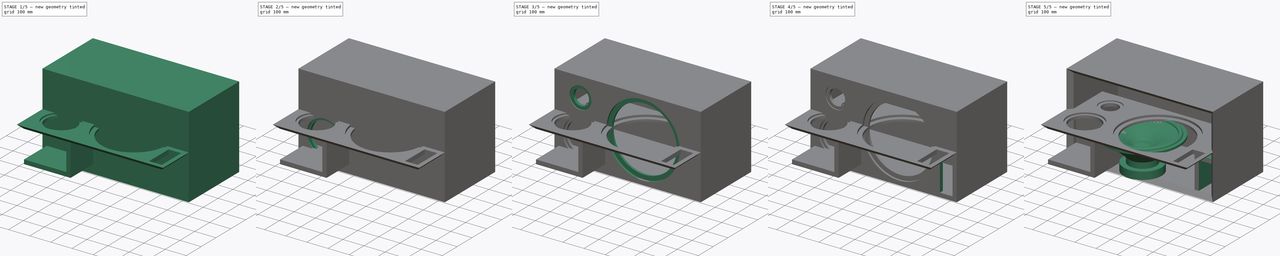
[diagram: build sequence overview — one tinted view per stage of 5, left to right]
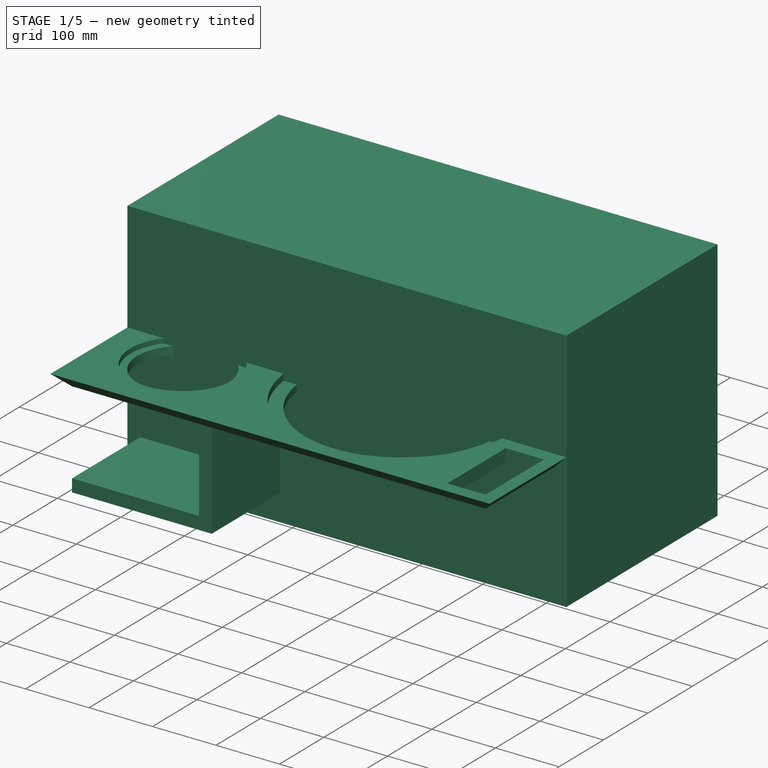
[diagram: stage 1 of 5 — iso view after this stage's code; geometry added in this stage tinted green]
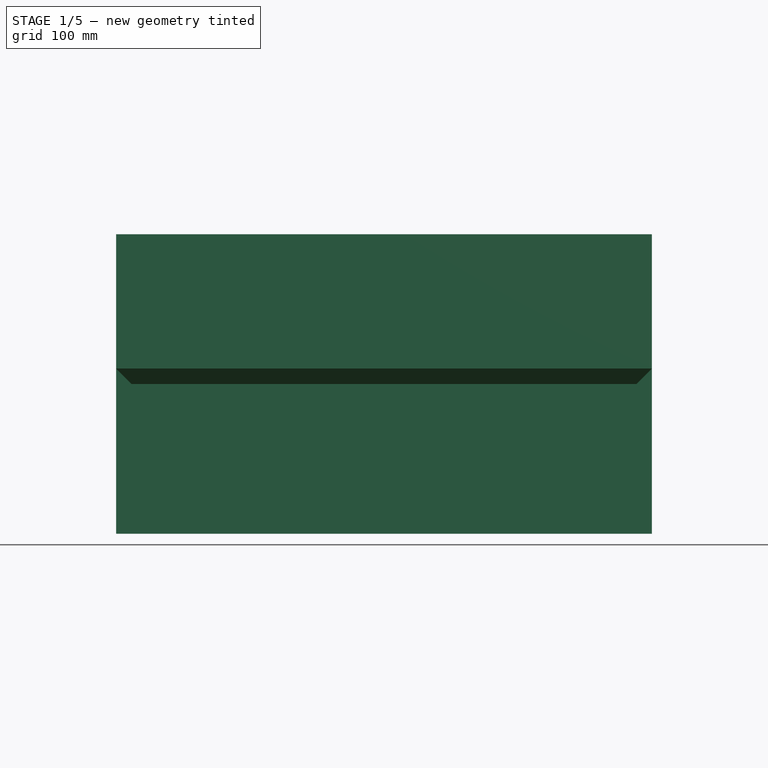
[diagram: stage 1 of 5 — front view after this stage's code; geometry added in this stage tinted green]
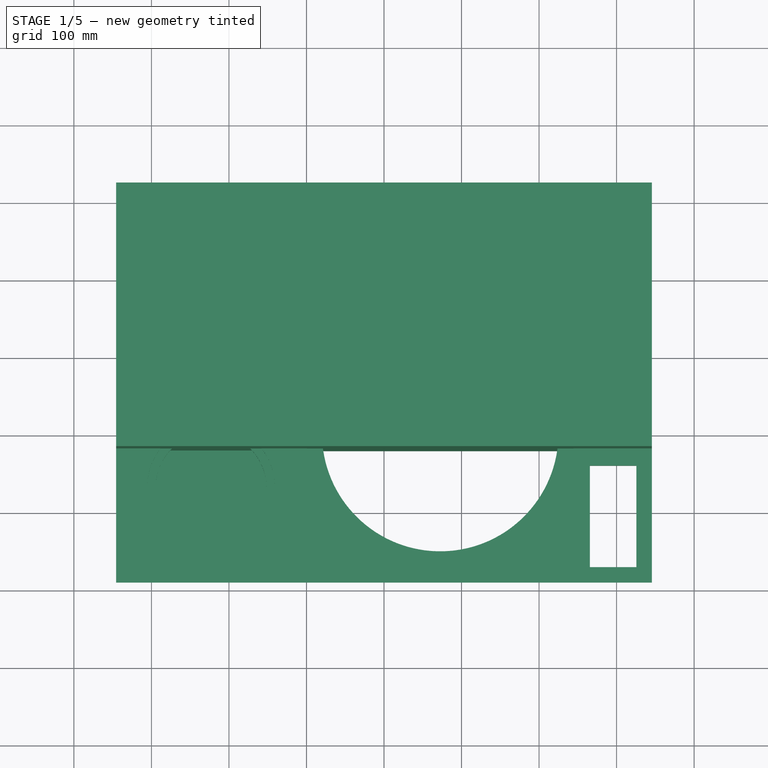
[diagram: stage 1 of 5 — top view after this stage's code; geometry added in this stage tinted green]
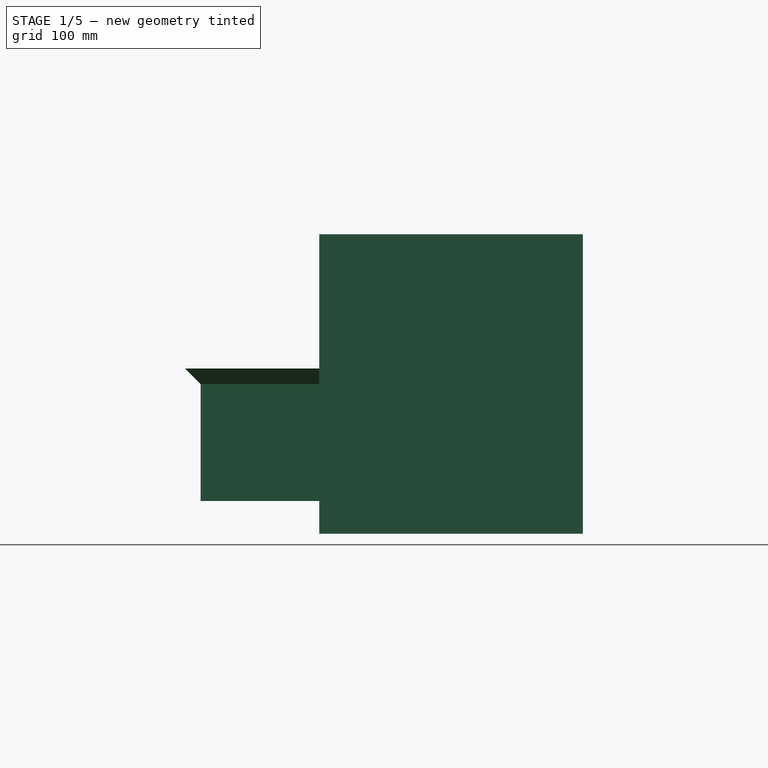
[diagram: stage 1 of 5 — right view after this stage's code; geometry added in this stage tinted green]
FCSTD DOCUMENT  (FreeCAD 1.0R39109 (Git))
Label: front_baffle_cad
License: All rights reserved
LicenseURL: http://en.wikipedia.org/wiki/All_rights_reserved
objects: Sketcher::SketchObject×16, Part::Feature×12, PartDesign::Pocket×10, PartDesign::Pad×5, PartDesign::Body×4, PartDesign::Mirrored×3, App::Part×3, PartDesign::FeatureBase×2, PartDesign::Revolution×1, Part::Box×1, Part::Thickness×1, PartDesign::Boolean×1, PartDesign::Plane×1, PartDesign::ShapeBinder×1
note: 112 computed .brp shape members not serialized (recipe doc carries the construction recipe); baked Part::Feature solids carry a one-line shape summary decoded from their .brp

FEATURE [PartDesign::Body] Body001
  AllowCompound = false
  Group = -> [Sketch010,Revolution]
  Origin = -> Origin004
  Placement = pos=(73,-19,4.2e-15) rot=(1,0,0;1.5708rad)
  Tip = -> Revolution
FEATURE [Part::Box] Box  label="Cube"
  AttacherType = Attacher::AttachEngine3D
  Height = 386.2
  Length = 691.2
  Placement = pos=(-345.6,-20,-193.1) rot=(0,0,1;0rad)
  Width = 340
FEATURE [PartDesign::Mirrored] Mirrored003
  Placement = pos=(0,0,0) rot=(1,0,0;1.5708rad)
  Suppressed = false
  TransformMode = 0
FEATURE [PartDesign::ShapeBinder] CopyMirrored003
  Placement = pos=(0,0,0) rot=(1,0,0;1.5708rad)
  TraceSupport = false
FEATURE [Sketcher::SketchObject] Sketch013
  ArcFitTolerance = 1e-06
  AttachmentSupport = -> [CopyMirrored003]
  FullyConstrained = true
  MakeInternals = false
  MapMode = 5
  Placement = pos=(0,0,0) rot=(-1,0,0;1.5708rad)
FEATURE [PartDesign::Body] Body002
  AllowCompound = false
  BaseFeature = -> Thickness
  Group = -> [BaseFeature,Boolean,DatumPlane,Sketch011,Pad001,Sketch012,Pad002,Pocket009,CopyMirrored003,Sketch013]
  Origin = -> Origin005
  Tip = -> Pocket009
FEATURE [PartDesign::FeatureBase] BaseFeature001
  BaseFeature = -> Mirrored003
  Suppressed = false
FEATURE [Sketcher::SketchObject] Sketch014
  ArcFitTolerance = 1e-06
  AttachmentSupport = -> [BaseFeature001]
  ExternalGeometry = -> [BaseFeature001]
  FullyConstrained = true
  MakeInternals = false
  MapMode = 5
  Placement = pos=(0,0,0) rot=(1,0,0;3.14159rad)
  sketch-geometry (6):
    g0: LineSegment StartX=-325.6 StartY=-36.9 StartZ=0 EndX=-105.6 EndY=-36.9 EndZ=0
    g1: LineSegment StartX=-105.6 StartY=-36.9 StartZ=0 EndX=-105.6 EndY=173.1 EndZ=0
    g2: LineSegment StartX=-105.6 StartY=173.1 StartZ=0 EndX=-125.6 EndY=173.1 EndZ=0
    g3: LineSegment StartX=-125.6 StartY=173.1 StartZ=0 EndX=-125.6 EndY=-16.9 EndZ=0
    g4: LineSegment StartX=-125.6 StartY=-16.9 StartZ=0 EndX=-325.6 EndY=-16.9 EndZ=0
    g5: LineSegment StartX=-325.6 StartY=-16.9 StartZ=0 EndX=-325.6 EndY=-36.9 EndZ=0
  constraints (18):
    c: PointOnObject(g0,g-3)
    c: Horizontal(g0)
    c: Coincident(g0,g1)
    c: PointOnObject(g1,g-4)
    c: Vertical(g1)
    c: Coincident(g1,g2)
    c: PointOnObject(g2,g-4)
    c: Coincident(g2,g3)
    c: Vertical(g3)
    c: Coincident(g3,g4)
    c: PointOnObject(g4,g-3)
    c: Horizontal(g4)
    c: Coincident(g4,g5)
    c: Coincident(g5,g0)
    c: Distance(g0,g4) = 20
    c: Distance(g1,g3) = 20
    c: DistanceX(g4,g4) = 200
    c: DistanceY(g3,g3) = 190
FEATURE [PartDesign::Pad] Pad003
  BaseFeature = -> BaseFeature001
  Direction = (0,0,-1)
  Length = 131
  Length2 = 10
  Profile = -> Sketch014
  ReferenceAxis = -> Sketch014 [N_Axis]
  Refine = true
  Suppressed = false
  Type = 0
FEATURE [Sketcher::SketchObject] Sketch015
  ArcFitTolerance = 1e-06
  AttachmentSupport = -> [Pad003]
  ExternalGeometry = -> [Pad003]
  FullyConstrained = true
  MakeInternals = false
  MapMode = 5
  Placement = pos=(0,0,-131) rot=(1,0,0;3.14159rad)
  sketch-geometry (4):
    g0: LineSegment StartX=-105.6 StartY=-36.9 StartZ=0 EndX=-105.6 EndY=173.1 EndZ=0
    g1: LineSegment StartX=-105.6 StartY=173.1 StartZ=0 EndX=-325.6 EndY=173.1 EndZ=0
    g2: LineSegment StartX=-325.6 StartY=173.1 StartZ=0 EndX=-325.6 EndY=-36.9 EndZ=0
    g3: LineSegment StartX=-325.6 StartY=-36.9 StartZ=0 EndX=-105.6 EndY=-36.9 EndZ=0
  constraints (10):
    c: Coincident(g0,g1)
    c: Coincident(g1,g2)
    c: Coincident(g2,g3)
    c: Coincident(g3,g0)
    c: Vertical(g0)
    c: Vertical(g2)
    c: Horizontal(g1)
    c: Horizontal(g3)
    c: Coincident(g0,g-3)
    c: Coincident(g1,g-4)
FEATURE [PartDesign::Pad] Pad004
  BaseFeature = -> Pad003
  Direction = (0,0,-1)
  Length = 20
  Length2 = 10
  Profile = -> Sketch015
  ReferenceAxis = -> Sketch015 [N_Axis]
  Refine = true
  Suppressed = false
  Type = 0
FEATURE [PartDesign::Body] Body003
  AllowCompound = false
  BaseFeature = -> Mirrored003
  Group = -> [BaseFeature001,Sketch014,Pad003,Sketch015,Pad004]
  Origin = -> Origin006
  Placement = pos=(0,0,0) rot=(1,0,0;1.5708rad)
  Tip = -> Pad004
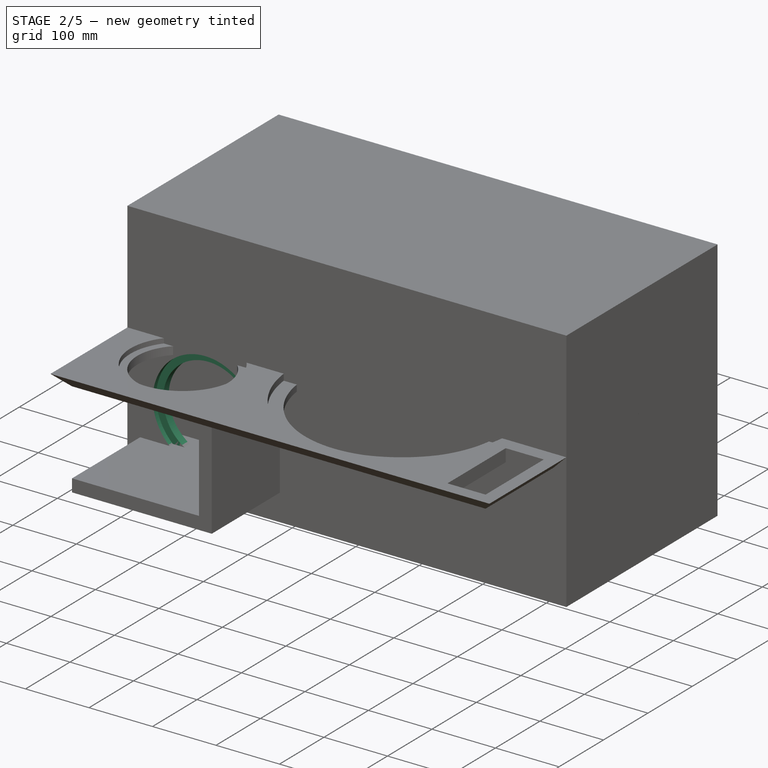
[diagram: stage 2 of 5 — iso view after this stage's code; geometry added in this stage tinted green]
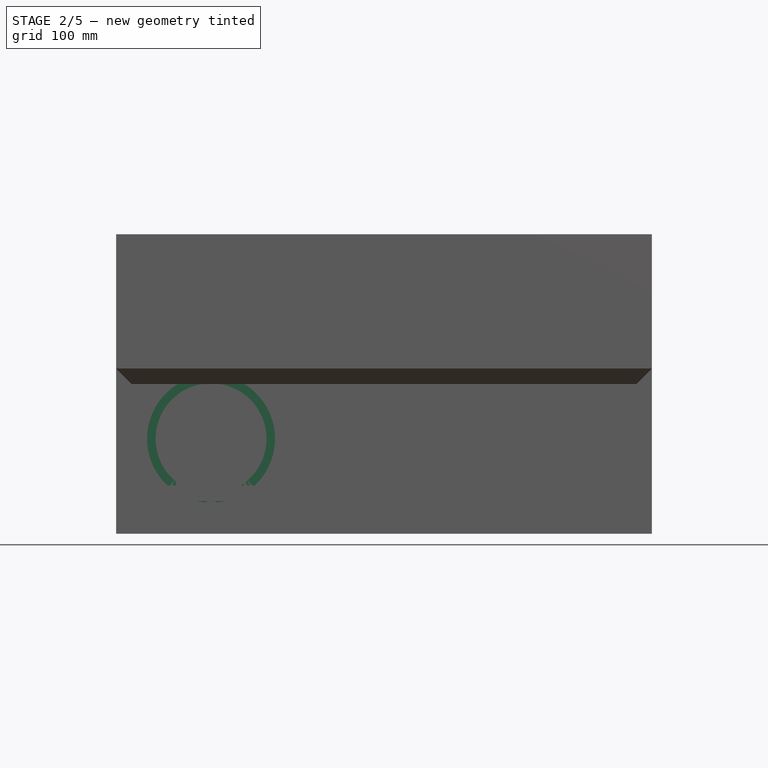
[diagram: stage 2 of 5 — front view after this stage's code; geometry added in this stage tinted green]
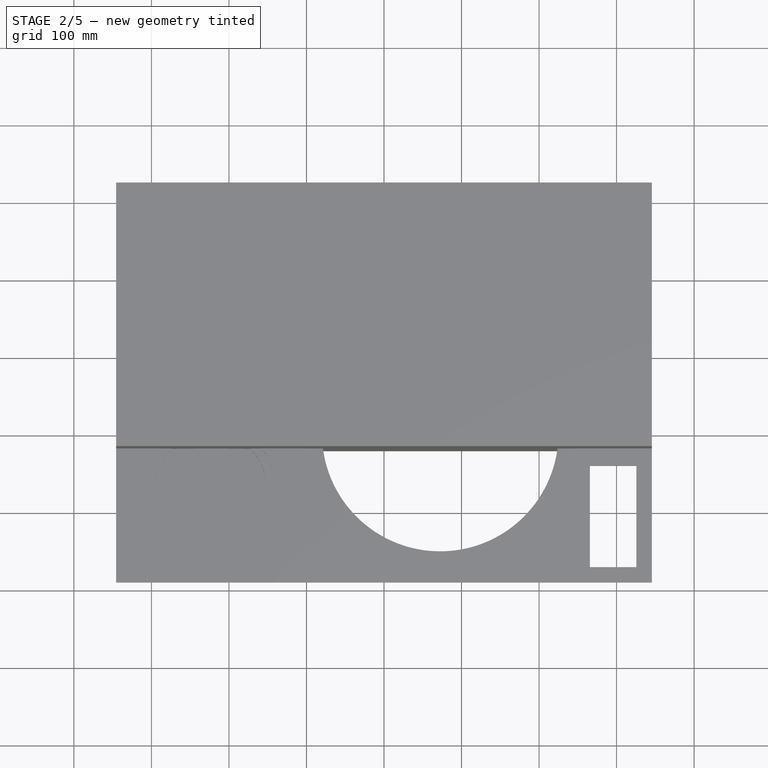
[diagram: stage 2 of 5 — top view after this stage's code; geometry added in this stage tinted green]
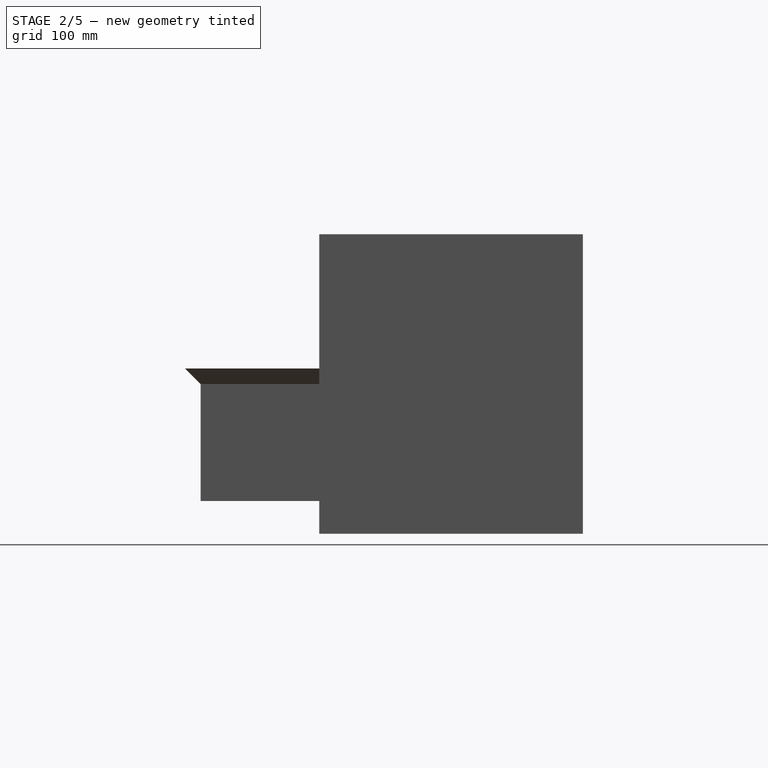
[diagram: stage 2 of 5 — right view after this stage's code; geometry added in this stage tinted green]
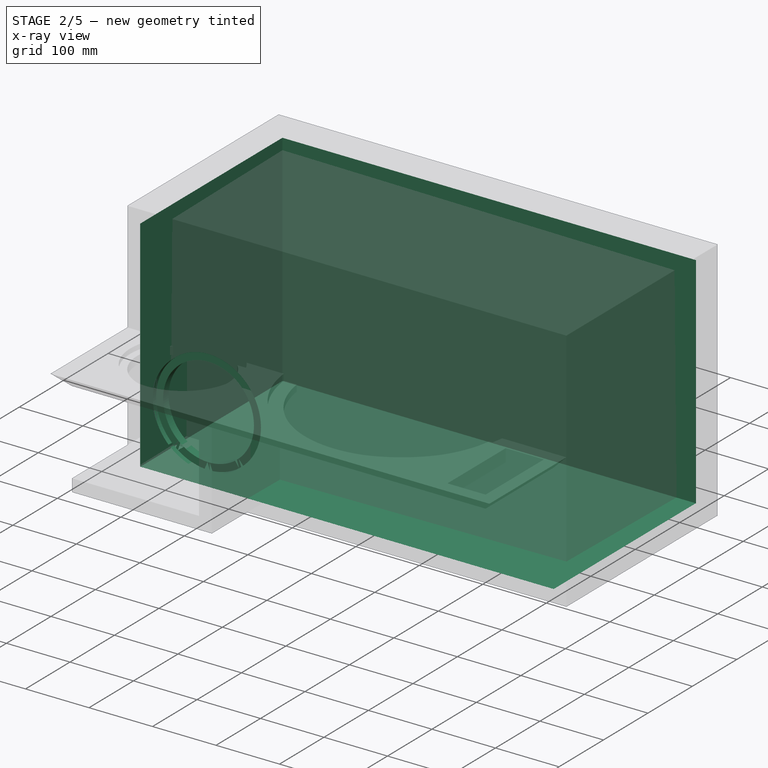
[diagram: stage 2 of 5 — x-ray composite at the iso view; earlier geometry ghosted, this stage's added geometry solid]
FEATURE [Sketcher::SketchObject] Sketch
  ArcFitTolerance = 1e-06
  AttachmentSupport = -> [XZ_Plane]
  FullyConstrained = true
  MakeInternals = false
  MapMode = 5
  Placement = pos=(0,0,0) rot=(1,0,0;1.5708rad)
  sketch-geometry (5):
    g0: LineSegment StartX=345.6 StartY=-193.1 StartZ=0 EndX=345.6 EndY=193.1 EndZ=0
    g1: LineSegment StartX=345.6 StartY=193.1 StartZ=0 EndX=-345.6 EndY=193.1 EndZ=0
    g2: LineSegment StartX=-345.6 StartY=193.1 StartZ=0 EndX=-345.6 EndY=-193.1 EndZ=0
    g3: LineSegment StartX=-345.6 StartY=-193.1 StartZ=0 EndX=345.6 EndY=-193.1 EndZ=0
    g4: GeomPoint [constr] X=0 Y=0 Z=0
  constraints (12):
    c: Coincident(g0,g1)
    c: Coincident(g1,g2)
    c: Coincident(g2,g3)
    c: Coincident(g3,g0)
    c: Vertical(g0)
    c: Vertical(g2)
    c: Horizontal(g1)
    c: Horizontal(g3)
    c: Symmetric(g2,g0,g4)
    c: Coincident(g4,g-1)
    c: DistanceX(g1,g1) = 691.2
    c: Distance(g2,g2) = 386.2
FEATURE [PartDesign::Pad] Pad
  Direction = (0,-1,2e-16)
  Length = 20
  Length2 = 10
  Placement = pos=(0,0,0) rot=(1,0,0;1.5708rad)
  Profile = -> Sketch
  ReferenceAxis = -> Sketch [N_Axis]
  Suppressed = false
  Type = 0
FEATURE [Sketcher::SketchObject] Sketch001
  ArcFitTolerance = 1e-06
  AttachmentSupport = -> [Pad]
  ExternalGeometry = -> [Pad]
  FullyConstrained = false
  MakeInternals = false
  MapMode = 5
  Placement = pos=(0,-20,0) rot=(1,0,0;1.5708rad)
  sketch-geometry (5):
    g0: GeomPoint [constr] X=-223.1 Y=0 Z=0
    g1: Circle CenterX=-223.1 CenterY=-70.6 CenterZ=0 NormalX=0 NormalY=0 NormalZ=1 AngleXU=0 Radius=82.5
    g2: LineSegment [constr] StartX=-223.1 StartY=-70.6 StartZ=0 EndX=-140.6 EndY=-70.6 EndZ=0
    g3: LineSegment [constr] StartX=-223.1 StartY=-70.6 StartZ=0 EndX=-223.1 EndY=-153.1 EndZ=0
    g4: LineSegment [constr] StartX=-223.1 StartY=-70.6 StartZ=0 EndX=-305.6 EndY=-70.6 EndZ=0
  constraints (13):
    c: PointOnObject(g0,g-1)
    c: Diameter(g1) = 165
    c: Coincident(g2,g1)
    c: PointOnObject(g2,g1)
    c: Horizontal(g2)
    c: Coincident(g3,g1)
    c: PointOnObject(g3,g1)
    c: Vertical(g3)
    c: DistanceY(g-3,g3) = 40
    c: Coincident(g4,g1)
    c: PointOnObject(g4,g1)
    c: Horizontal(g4)
    c: DistanceX(g-3,g4) = 40
FEATURE [PartDesign::Pocket] Pocket
  BaseFeature = -> Pad
  Direction = (0,1,-2e-16)
  Length = 7.5
  Length2 = 5
  Placement = pos=(0,0,0) rot=(1,0,0;1.5708rad)
  Profile = -> Sketch001
  ReferenceAxis = -> Sketch001 [N_Axis]
  Suppressed = false
  Type = 0
FEATURE [Sketcher::SketchObject] Sketch002
  ArcFitTolerance = 1e-06
  AttachmentSupport = -> [Pocket]
  ExternalGeometry = -> [Pocket]
  FullyConstrained = true
  MakeInternals = false
  MapMode = 5
  Placement = pos=(0,-12.5,2.8e-15) rot=(1,0,0;1.5708rad)
  sketch-geometry (1):
    g0: Circle CenterX=-223.1 CenterY=-70.6 CenterZ=0 NormalX=0 NormalY=0 NormalZ=1 AngleXU=0 Radius=71.5
  constraints (2):
    c: Coincident(g0,g-3)
    c: Diameter(g0) = 143
FEATURE [PartDesign::Pocket] Pocket001
  BaseFeature = -> Pocket
  Direction = (0,1,-2e-16)
  Length = 5
  Length2 = 5
  Placement = pos=(0,0,0) rot=(1,0,0;1.5708rad)
  Profile = -> Sketch002
  ReferenceAxis = -> Sketch002 [N_Axis]
  Suppressed = false
  Type = 1
FEATURE [Part::Thickness] Thickness
  Faces = -> Box [Face3]
  Intersection = false
  Join = 1
  Mode = 0
  SelfIntersection = false
  Value = -20
FEATURE [PartDesign::FeatureBase] BaseFeature
  BaseFeature = -> Thickness
  Suppressed = false
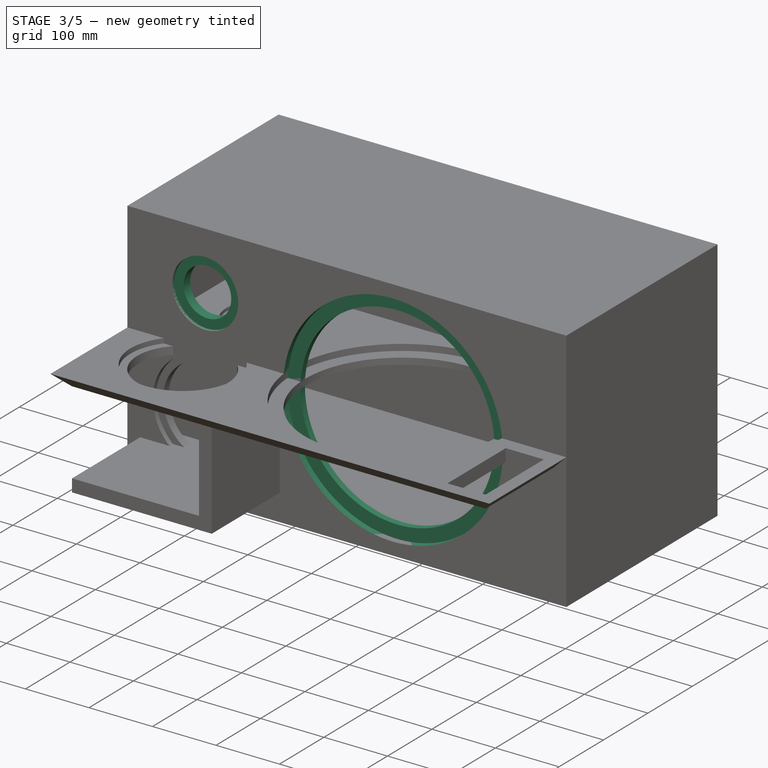
[diagram: stage 3 of 5 — iso view after this stage's code; geometry added in this stage tinted green]
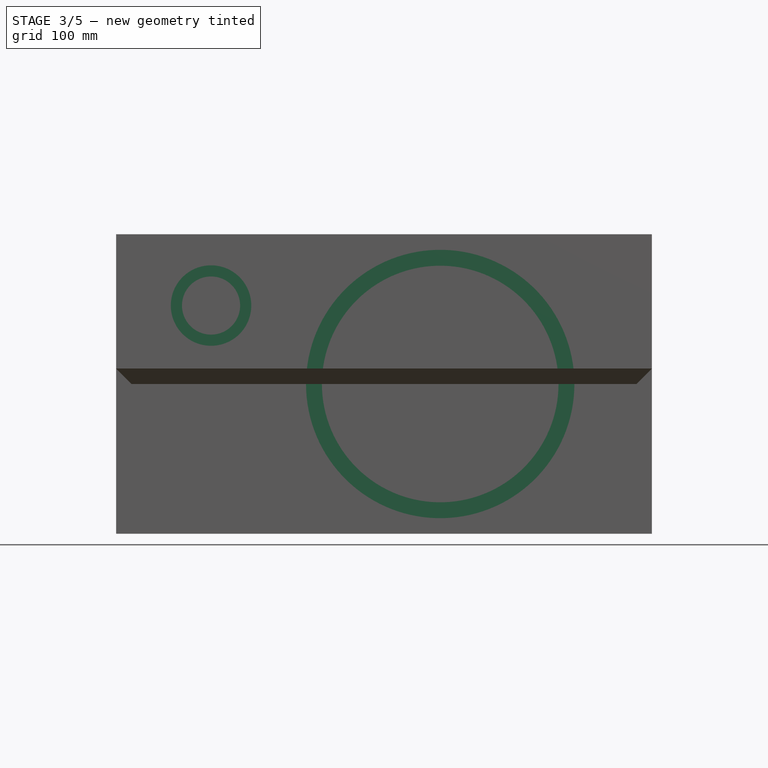
[diagram: stage 3 of 5 — front view after this stage's code; geometry added in this stage tinted green]
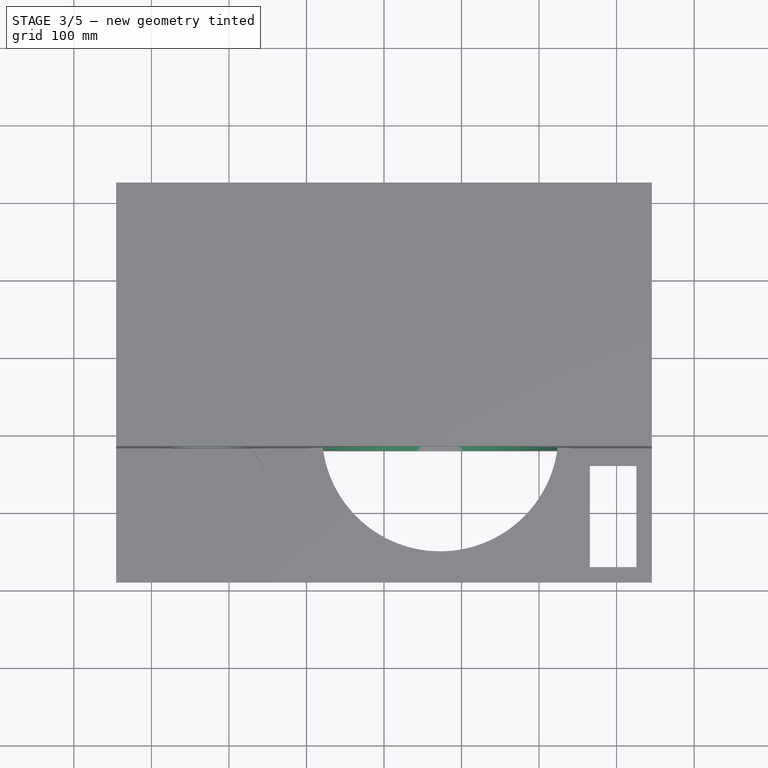
[diagram: stage 3 of 5 — top view after this stage's code; geometry added in this stage tinted green]
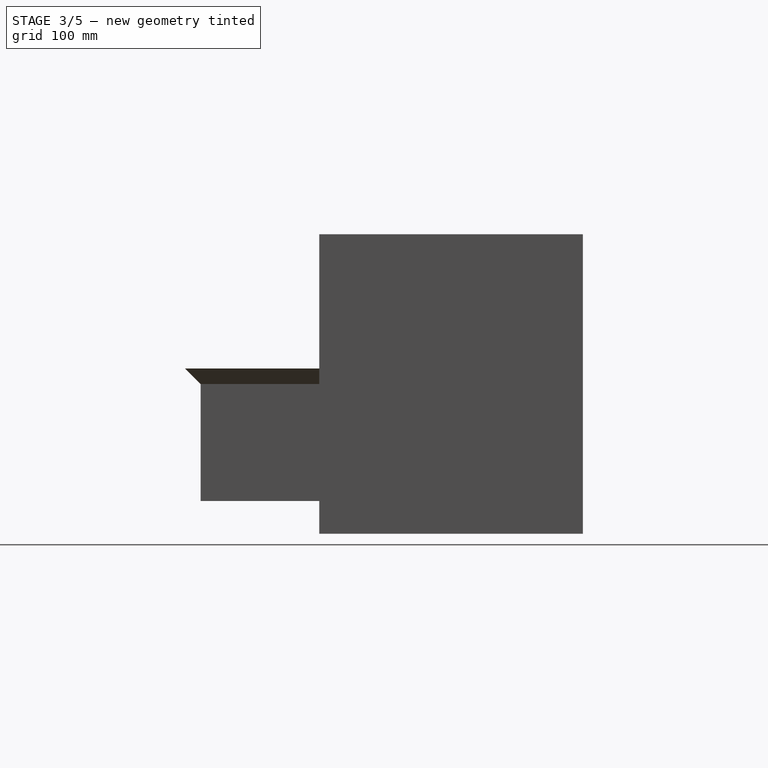
[diagram: stage 3 of 5 — right view after this stage's code; geometry added in this stage tinted green]
FEATURE [Sketcher::SketchObject] Sketch003
  ArcFitTolerance = 1e-06
  AttachmentSupport = -> [Pocket001]
  ExternalGeometry = -> [Pocket001]
  FullyConstrained = true
  MakeInternals = false
  MapMode = 5
  Placement = pos=(0,-20,0) rot=(1,0,0;1.5708rad)
  sketch-geometry (3):
    g0: LineSegment [constr] StartX=-223.1 StartY=-70.6 StartZ=0 EndX=-223.1 EndY=193.1 EndZ=0
    g1: Circle CenterX=-223.1 CenterY=101.2 CenterZ=0 NormalX=0 NormalY=0 NormalZ=1 AngleXU=0 Radius=51.9
    g2: LineSegment [constr] StartX=-223.1 StartY=101.2 StartZ=0 EndX=-223.1 EndY=153.1 EndZ=0
  constraints (9):
    c: Coincident(g0,g-3)
    c: PointOnObject(g0,g-4)
    c: Vertical(g0)
    c: PointOnObject(g1,g0)
    c: Diameter(g1) = 103.8
    c: Coincident(g2,g1)
    c: PointOnObject(g2,g0)
    c: PointOnObject(g2,g1)
    c: DistanceY(g2,g-4) = 40
FEATURE [PartDesign::Pocket] Pocket002
  BaseFeature = -> Pocket001
  Direction = (0,1,-2e-16)
  Length = 5
  Length2 = 5
  Placement = pos=(0,0,0) rot=(1,0,0;1.5708rad)
  Profile = -> Sketch003
  ReferenceAxis = -> Sketch003 [N_Axis]
  Suppressed = false
  Type = 0
FEATURE [Sketcher::SketchObject] Sketch004
  ArcFitTolerance = 1e-06
  AttachmentSupport = -> [Pocket002]
  ExternalGeometry = -> [Pocket002]
  FullyConstrained = true
  MakeInternals = false
  MapMode = 5
  Placement = pos=(0,-15,0) rot=(1,0,0;1.5708rad)
  sketch-geometry (1):
    g0: Circle CenterX=-223.1 CenterY=101.2 CenterZ=0 NormalX=0 NormalY=0 NormalZ=1 AngleXU=0 Radius=37.5
  constraints (2):
    c: Coincident(g0,g-3)
    c: Diameter(g0) = 75
FEATURE [PartDesign::Pocket] Pocket003
  BaseFeature = -> Pocket002
  Direction = (0,1,-2e-16)
  Length = 5
  Length2 = 5
  Placement = pos=(0,0,0) rot=(1,0,0;1.5708rad)
  Profile = -> Sketch004
  ReferenceAxis = -> Sketch004 [N_Axis]
  Suppressed = false
  Type = 1
FEATURE [Sketcher::SketchObject] Sketch005
  ArcFitTolerance = 1e-06
  AttachmentSupport = -> [Pocket003]
  ExternalGeometry = -> [Pocket003]
  FullyConstrained = true
  MakeInternals = false
  MapMode = 5
  Placement = pos=(0,-20,0) rot=(1,0,0;1.5708rad)
  sketch-geometry (3):
    g0: Circle CenterX=72.5 CenterY=0 CenterZ=0 NormalX=0 NormalY=0 NormalZ=1 AngleXU=0 Radius=173.1
    g1: LineSegment [constr] StartX=72.5 StartY=0 StartZ=0 EndX=-100.6 EndY=0 EndZ=0
    g2: LineSegment [constr] StartX=-223.1 StartY=-70.6 StartZ=0 EndX=-140.6 EndY=-70.6 EndZ=0
  constraints (9):
    c: PointOnObject(g0,g-1)
    c: Diameter(g0) = 346.2
    c: Coincident(g1,g0)
    c: PointOnObject(g1,g0)
    c: Horizontal(g1)
    c: Coincident(g2,g-3)
    c: PointOnObject(g2,g-3)
    c: Horizontal(g2)
    c: DistanceX(g2,g1) = 40
FEATURE [PartDesign::Pocket] Pocket004
  BaseFeature = -> Pocket003
  Direction = (0,1,-2e-16)
  Length = 10
  Length2 = 5
  Placement = pos=(0,0,0) rot=(1,0,0;1.5708rad)
  Profile = -> Sketch005
  ReferenceAxis = -> Sketch005 [N_Axis]
  Suppressed = false
  Type = 0
FEATURE [Sketcher::SketchObject] Sketch006
  ArcFitTolerance = 1e-06
  AttachmentSupport = -> [Pocket004]
  ExternalGeometry = -> [Pocket004]
  FullyConstrained = true
  MakeInternals = false
  MapMode = 5
  Placement = pos=(0,-10,0) rot=(1,0,0;1.5708rad)
  sketch-geometry (1):
    g0: Circle CenterX=72.5 CenterY=0 CenterZ=0 NormalX=0 NormalY=0 NormalZ=1 AngleXU=0 Radius=152.6
  constraints (2):
    c: Coincident(g0,g-3)
    c: Diameter(g0) = 305.2
FEATURE [PartDesign::Pocket] Pocket005
  BaseFeature = -> Pocket004
  Direction = (0,1,-2e-16)
  Length = 5
  Length2 = 5
  Placement = pos=(0,0,0) rot=(1,0,0;1.5708rad)
  Profile = -> Sketch006
  ReferenceAxis = -> Sketch006 [N_Axis]
  Suppressed = false
  Type = 1
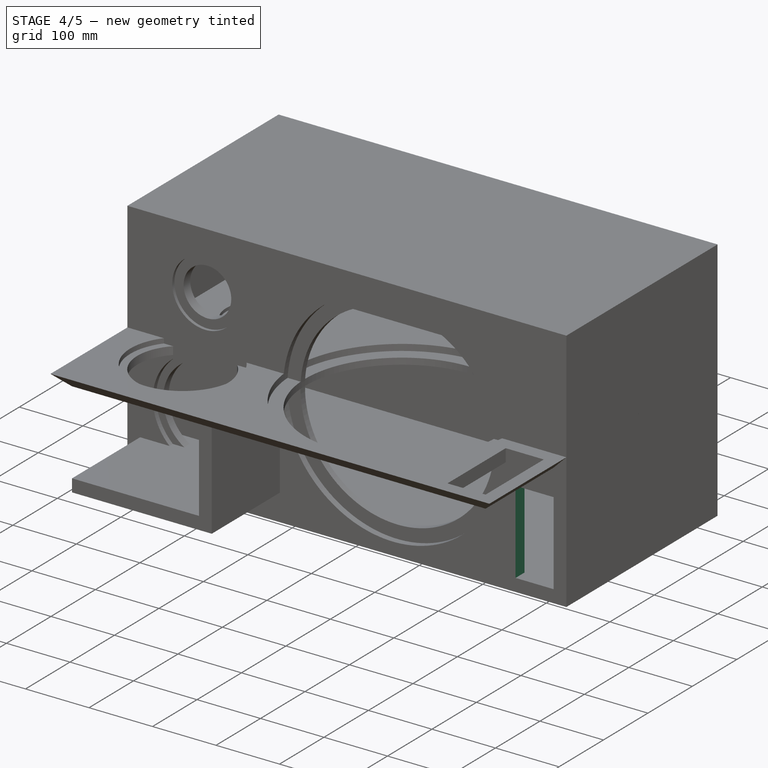
[diagram: stage 4 of 5 — iso view after this stage's code; geometry added in this stage tinted green]
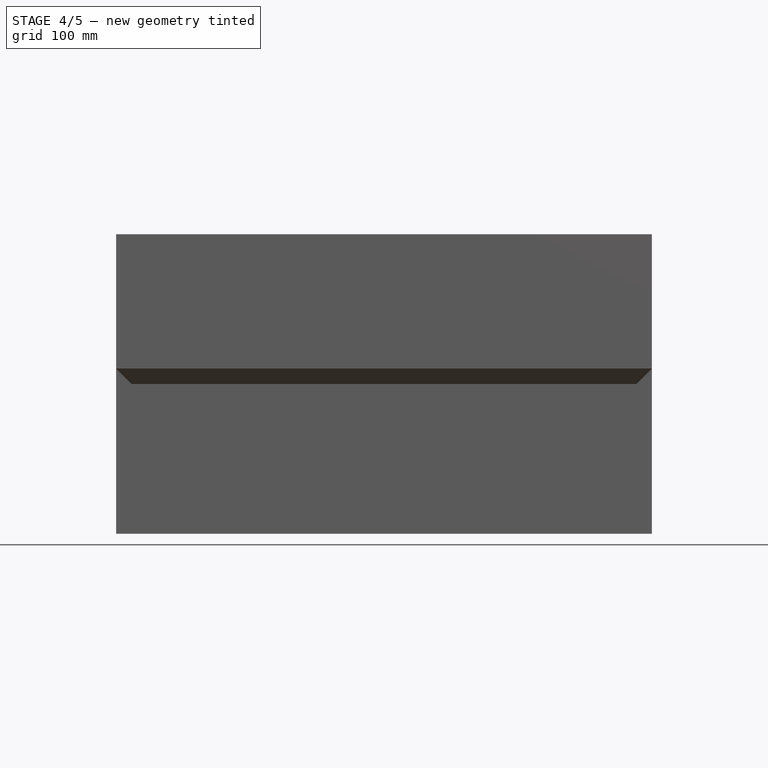
[diagram: stage 4 of 5 — front view after this stage's code; geometry added in this stage tinted green]
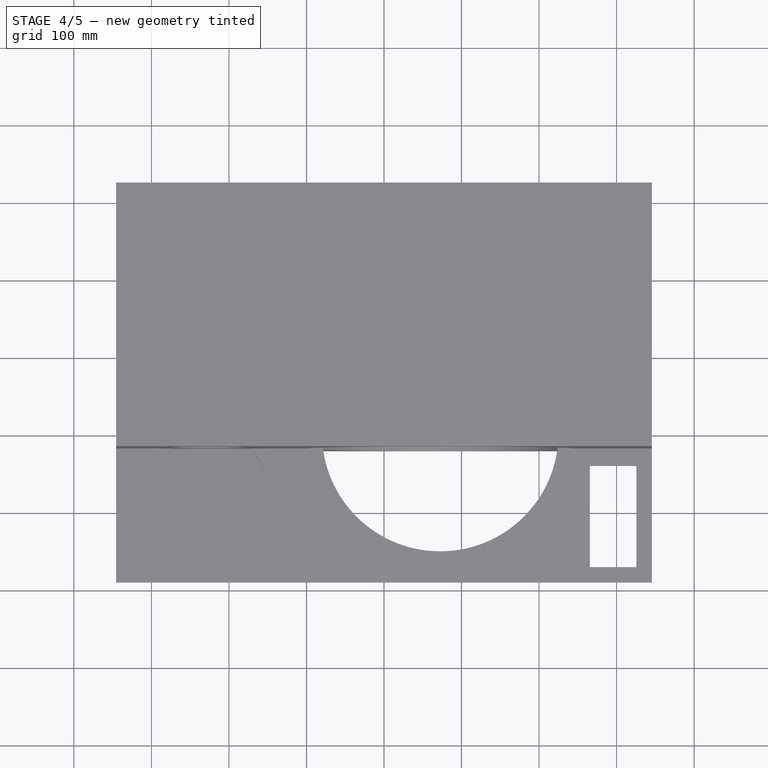
[diagram: stage 4 of 5 — top view after this stage's code; geometry added in this stage tinted green]
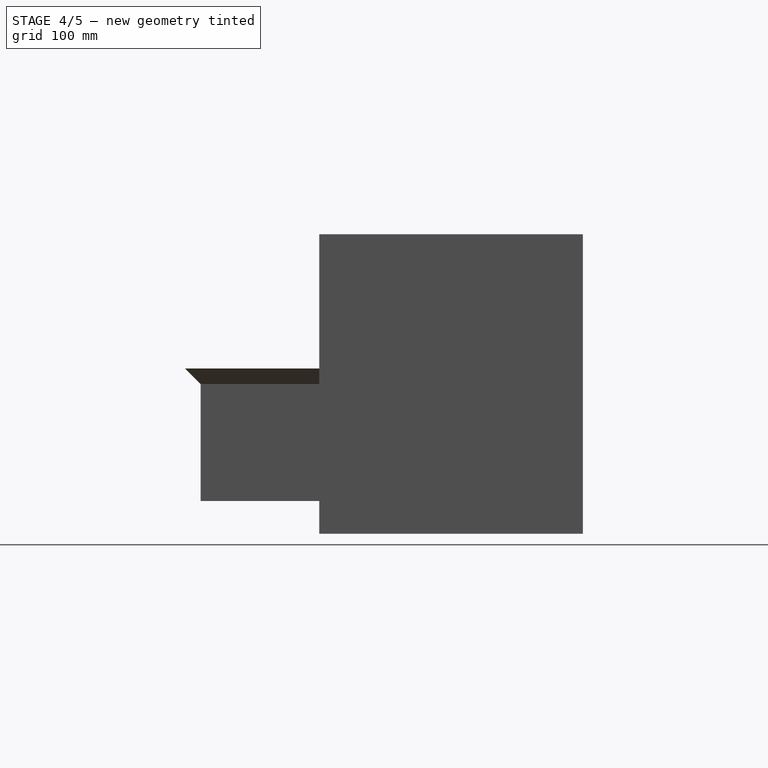
[diagram: stage 4 of 5 — right view after this stage's code; geometry added in this stage tinted green]
FEATURE [Sketcher::SketchObject] Sketch007
  ArcFitTolerance = 1e-06
  AttachmentSupport = -> [Pocket005]
  ExternalGeometry = -> [Pocket005]
  FullyConstrained = true
  MakeInternals = false
  MapMode = 5
  Placement = pos=(0,-20,0) rot=(1,0,0;1.5708rad)
  sketch-geometry (5):
    g0: LineSegment StartX=265.6 StartY=-173.1 StartZ=0 EndX=325.6 EndY=-173.1 EndZ=0
    g1: LineSegment StartX=325.6 StartY=-173.1 StartZ=0 EndX=325.6 EndY=-42.1 EndZ=0
    g2: LineSegment StartX=325.6 StartY=-42.1 StartZ=0 EndX=265.6 EndY=-42.1 EndZ=0
    g3: LineSegment StartX=265.6 StartY=-42.1 StartZ=0 EndX=265.6 EndY=-173.1 EndZ=0
    g4: GeomPoint [constr] X=295.6 Y=-107.6 Z=0
  constraints (13):
    c: Coincident(g0,g1)
    c: Coincident(g1,g2)
    c: Coincident(g2,g3)
    c: Coincident(g3,g0)
    c: Horizontal(g0)
    c: Horizontal(g2)
    c: Vertical(g1)
    c: Vertical(g3)
    c: Symmetric(g2,g0,g4)
    c: DistanceX(g2,g2) = 60
    c: DistanceY(g3,g3) = 131
    c: DistanceX(g0,g-4) = 20
    c: DistanceY(g-4,g0) = 20
FEATURE [PartDesign::Pocket] Pocket006
  BaseFeature = -> Pocket005
  Direction = (0,1,-2e-16)
  Length = 5
  Length2 = 5
  Placement = pos=(0,0,0) rot=(1,0,0;1.5708rad)
  Profile = -> Sketch007
  ReferenceAxis = -> Sketch007 [N_Axis]
  Suppressed = false
  Type = 1
FEATURE [Sketcher::SketchObject] Sketch008
  ArcFitTolerance = 1e-06
  AttachmentSupport = -> [Pocket006]
  ExternalGeometry = -> [Pocket006]
  FullyConstrained = true
  MakeInternals = false
  MapMode = 5
  Placement = pos=(0,8.5e-14,193.1) rot=(0,0,1;3.14159rad)
  sketch-geometry (3):
    g0: LineSegment StartX=-345.6 StartY=20 StartZ=0 EndX=-325.6 EndY=0 EndZ=0
    g1: LineSegment StartX=-345.6 StartY=0 StartZ=0 EndX=-345.6 EndY=20 EndZ=0
    g2: LineSegment StartX=-345.6 StartY=0 StartZ=0 EndX=-325.6 EndY=0 EndZ=0
  constraints (8):
    c: Coincident(g0,g-3)
    c: PointOnObject(g0,g-4)
    c: PointOnObject(g1,g-1)
    c: Vertical(g1)
    c: Coincident(g2,g1)
    c: Coincident(g2,g0)
    c: Coincident(g0,g1)
    c: Angle(g0,g2) = 0.785398
FEATURE [PartDesign::Pocket] Pocket007
  BaseFeature = -> Pocket006
  Direction = (0,0,-1)
  Length = 5
  Length2 = 5
  Placement = pos=(0,0,0) rot=(1,0,0;1.5708rad)
  Profile = -> Sketch008
  ReferenceAxis = -> Sketch008 [N_Axis]
  Suppressed = false
  Type = 1
FEATURE [PartDesign::Mirrored] Mirrored
  BaseFeature = -> Pocket007
  MirrorPlane = -> YZ_Plane
  Originals = -> [Pocket007]
  Placement = pos=(0,0,0) rot=(1,0,0;1.5708rad)
  Suppressed = false
  TransformMode = 0
FEATURE [Sketcher::SketchObject] Sketch009
  ArcFitTolerance = 1e-06
  AttachmentSupport = -> [YZ_Plane]
  ExternalGeometry = -> [Mirrored]
  FullyConstrained = true
  MakeInternals = false
  MapMode = 5
  Placement = pos=(0,0,0) rot=(0.57735,0.57735,0.57735;2.0944rad)
  sketch-geometry (3):
    g0: LineSegment StartX=-20 StartY=193.1 StartZ=0 EndX=4.26e-14 EndY=173.1 EndZ=0
    g1: LineSegment StartX=4.26e-14 StartY=173.1 StartZ=0 EndX=4.29e-14 EndY=193.1 EndZ=0
    g2: LineSegment StartX=4.29e-14 StartY=193.1 StartZ=0 EndX=-20 EndY=193.1 EndZ=0
  constraints (7):
    c: Coincident(g-4,g0)
    c: PointOnObject(g0,g-5)
    c: Coincident(g0,g1)
    c: Coincident(g1,g-5)
    c: Coincident(g1,g2)
    c: Coincident(g2,g0)
    c: Angle(g1,g0) = 0.785398
FEATURE [PartDesign::Pocket] Pocket008
  BaseFeature = -> Mirrored
  Direction = (-1,0,0)
  Length = 5
  Length2 = 5
  Midplane = true
  Placement = pos=(0,0,0) rot=(1,0,0;1.5708rad)
  Profile = -> Sketch009
  ReferenceAxis = -> Sketch009 [N_Axis]
  Suppressed = false
  Type = 1
FEATURE [PartDesign::Mirrored] Mirrored001
  BaseFeature = -> Pocket008
  MirrorPlane = -> XY_Plane
  Originals = -> [Pocket008]
  Placement = pos=(0,0,0) rot=(1,0,0;1.5708rad)
  Suppressed = false
  TransformMode = 0
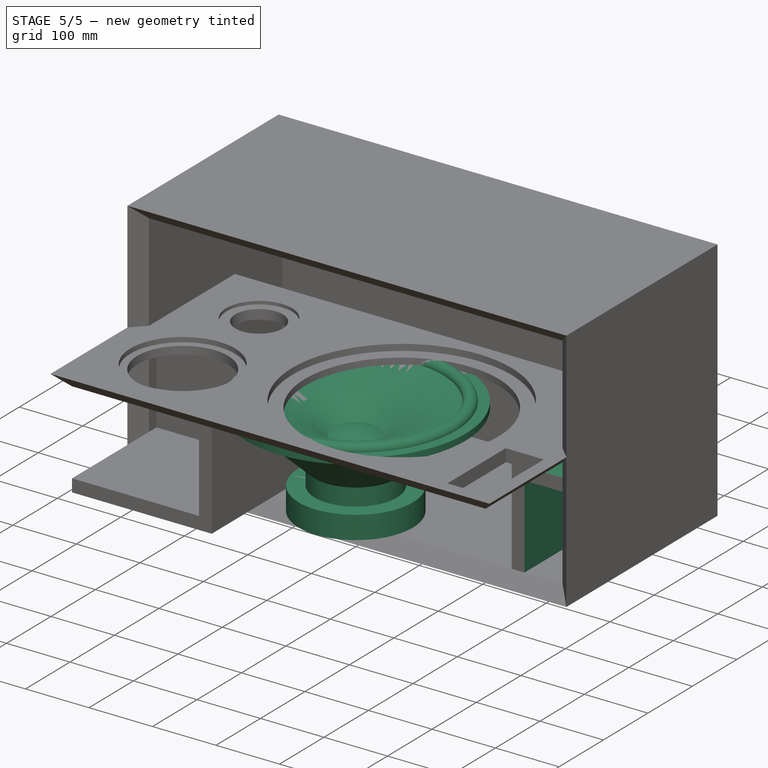
[diagram: stage 5 of 5 — iso view after this stage's code; geometry added in this stage tinted green]
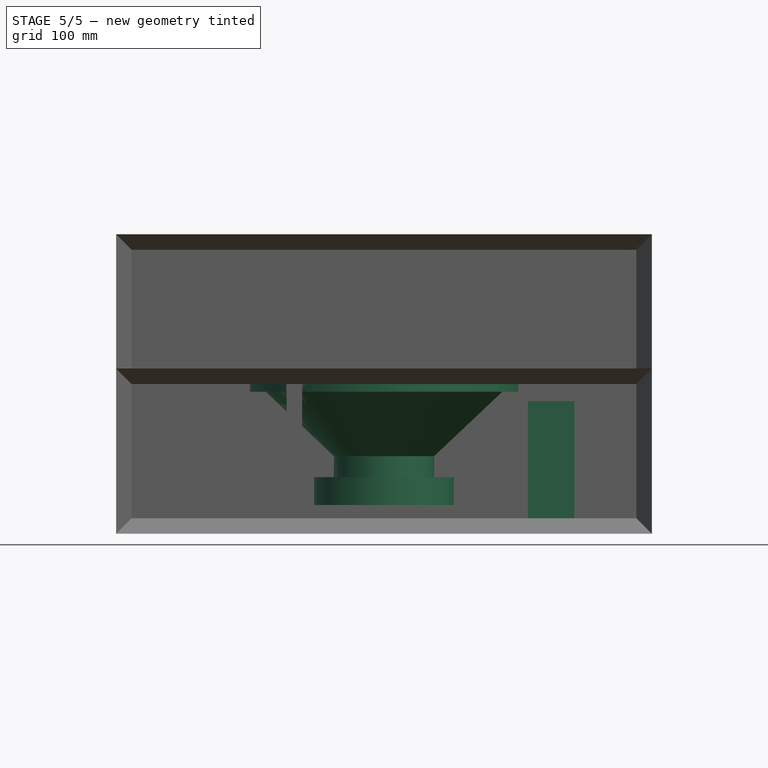
[diagram: stage 5 of 5 — front view after this stage's code; geometry added in this stage tinted green]
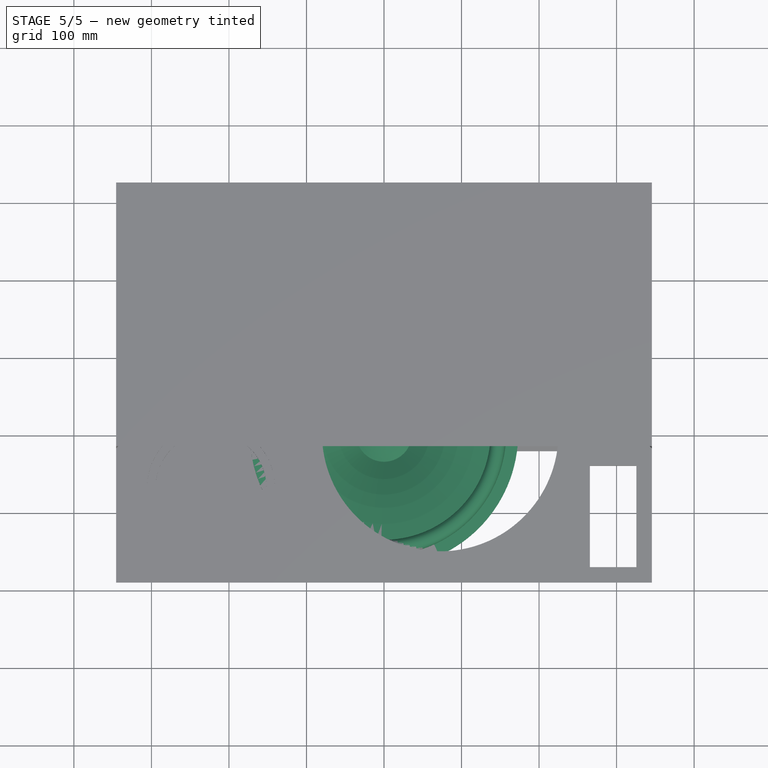
[diagram: stage 5 of 5 — top view after this stage's code; geometry added in this stage tinted green]
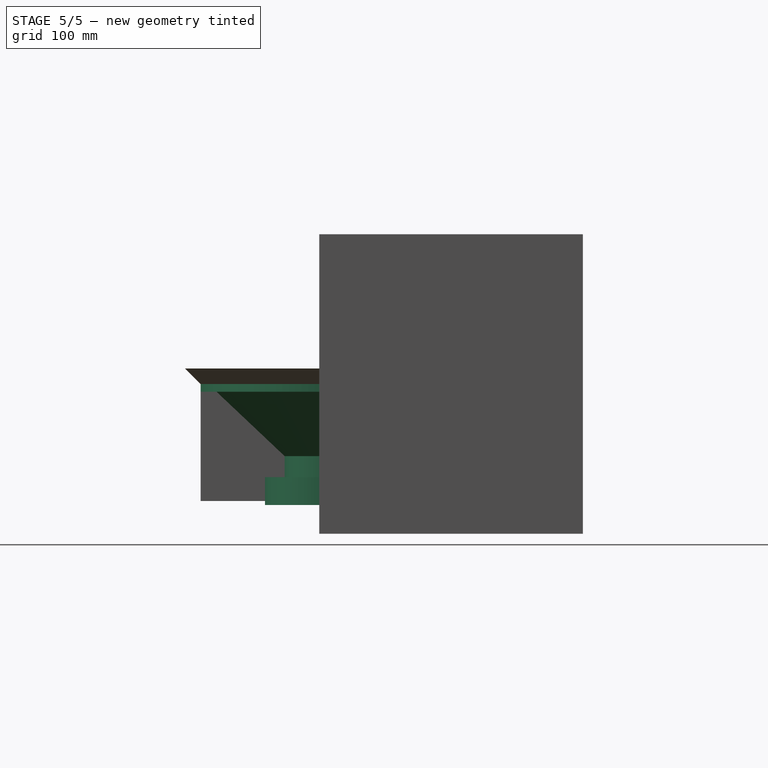
[diagram: stage 5 of 5 — right view after this stage's code; geometry added in this stage tinted green]
FEATURE [PartDesign::Body] Body
  AllowCompound = false
  Group = -> [Sketch,Pad,Sketch001,Pocket,Sketch002,Pocket001,Sketch003,Pocket002,Sketch004,Pocket003,Sketch005,Pocket004,Sketch006,Pocket005,Sketch007,Pocket006,Sketch008,Pocket007,Mirrored,Sketch009,Pocket008,Mirrored001]
  Origin = -> Origin
  Tip = -> Mirrored001
FEATURE [Part::Feature] Part__Feature  label="1"
  Placement = pos=(-223,-16,101) rot=(1,0,0;1.5708rad)
  shape: bbox 112.5 x 39.72 x 112.5 mm, 287 faces (baked)
FEATURE [Part::Feature] Part__Feature001  label="COMPOUND"
  shape: bbox 96.29 x 166 x 165 mm, 220 faces (baked)
FEATURE [Part::Feature] Part__Feature002  label="COMPOUND001"
  shape: bbox 22.35 x 44.2 x 44.59 mm, 6 faces (baked)
FEATURE [Part::Feature] Part__Feature003  label="COMPOUND002"
  shape: bbox 22.35 x 67.97 x 41.44 mm, 6 faces (baked)
FEATURE [Part::Feature] Part__Feature004  label="COMPOUND003"
  shape: bbox 22.35 x 44.2 x 73.61 mm, 6 faces (baked)
FEATURE [Part::Feature] Part__Feature005  label="COMPOUND004"
  shape: bbox 22.35 x 44.2 x 73.61 mm, 8 faces (baked)
FEATURE [Part::Feature] Part__Feature006  label="COMPOUND005"
  shape: bbox 22.35 x 67.97 x 41.44 mm, 6 faces (baked)
FEATURE [Part::Feature] Part__Feature007  label="COMPOUND006"
  shape: bbox 22.35 x 44.2 x 44.59 mm, 6 faces (baked)
FEATURE [Part::Feature] Part__Feature008  label="COMPOUND007"
  shape: bbox 2.716 x 93.81 x 93.81 mm, 94 faces (baked)
FEATURE [Part::Feature] Part__Feature009  label="COMPOUND008"
  shape: bbox 6.018 x 164 x 164 mm, 6 faces (baked)
FEATURE [App::Part] COMPOUND  label="COMPOUND009"
  Group = -> [Part__Feature001,Part__Feature002,Part__Feature003,Part__Feature004,Part__Feature005,Part__Feature006,Part__Feature007,Part__Feature008,Part__Feature009]
  Origin = -> Origin001
FEATURE [Part::Feature] Part__Feature010  label="COMPOUND010"
  shape: bbox 50.96 x 135.6 x 135.6 mm, 32 faces, 0 solids (baked)
FEATURE [Part::Feature] Part__Feature011  label="COMPOUND011"
  shape: bbox 2.959 x 40 x 40 mm, 2 faces, 0 solids (baked)
FEATURE [App::Part] COMPOUND001  label="COMPOUND012"
  Group = -> [Part__Feature010,Part__Feature011]
  Origin = -> Origin002
FEATURE [App::Part] Document
  Group = -> [COMPOUND,COMPOUND001]
  Origin = -> Origin003
  Placement = pos=(-223,-26,-71) rot=(0,0,1;1.5708rad)
FEATURE [Sketcher::SketchObject] Sketch010
  ArcFitTolerance = 1e-06
  AttachmentSupport = -> [XZ_Plane004]
  FullyConstrained = false
  MakeInternals = false
  MapMode = 5
  Placement = pos=(0,0,0) rot=(1,0,0;1.5708rad)
  sketch-geometry (20):
    g0: LineSegment StartX=0 StartY=-156 StartZ=0 EndX=5.1e-15 EndY=-38.7986 EndZ=0
    g1: ArcOfCircle CenterX=0 CenterY=-121.91 CenterZ=0 NormalX=0 NormalY=0 NormalZ=1 AngleXU=0 Radius=83.1112 StartAngle=1.12281 EndAngle=1.5708
    g2-g6: Circle [constr] x5 (B-spline internal-alignment scaffolding for g7; pole/knot coordinates omitted)
    g7: BSplineCurve PolesCount=5 KnotsCount=3 Degree=3 IsPeriodic=0
    g8: GeomPoint [constr] X=36 Y=-47 Z=0
    g9: GeomPoint [constr] X=75.381 Y=-21.553 Z=0
    g10: GeomPoint [constr] X=137.5 Y=0 Z=0
    g11: ArcOfCircle CenterX=147.5 CenterY=0 CenterZ=0 NormalX=0 NormalY=0 NormalZ=1 AngleXU=0 Radius=10 StartAngle=0 EndAngle=3.14159
    g12: LineSegment StartX=157.5 StartY=0 StartZ=0 EndX=173.1 EndY=0 EndZ=0
    g13: LineSegment StartX=173.1 StartY=0 StartZ=0 EndX=173.1 EndY=-10 EndZ=0
    g14: LineSegment StartX=173.1 StartY=-10 StartZ=0 EndX=152.6 EndY=-10 EndZ=0
    g15: LineSegment StartX=152.6 StartY=-10 StartZ=0 EndX=64.7225 EndY=-93.0181 EndZ=0
    g16: LineSegment StartX=90 StartY=-156 StartZ=0 EndX=0 EndY=-156 EndZ=0
    g17: LineSegment StartX=90 StartY=-156 StartZ=0 EndX=90 EndY=-120.116 EndZ=0
    g18: LineSegment StartX=90 StartY=-120.116 StartZ=0 EndX=64.7225 EndY=-120.116 EndZ=0
    g19: LineSegment StartX=64.7225 StartY=-120.116 StartZ=0 EndX=64.7225 EndY=-93.0181 EndZ=0
  constraints (40):
    c: PointOnObject(g0,g-2)
    c: PointOnObject(g0,g-2)
    c: Coincident(g1,g0)
    c: Weight(g2) = 1
    c: Equal(g2, g3-g6) x4
    c: InternalAlignment(g2-g6 -> g7) x5
    c: InternalAlignment(g8,g7)
    c: InternalAlignment(g9,g7)
    c: InternalAlignment(g10,g7)
    c: Coincident(g2,g1)
    c: Coincident(g11,g7)
    c: Coincident(g11,g12)
    c: Coincident(g12,g13)
    c: Vertical(g13)
    c: Coincident(g13,g14)
    c: Horizontal(g14)
    c: Coincident(g14,g15)
    c: Coincident(g16,g0)
    c: Horizontal(g16)
    c: Horizontal(g12)
    c: DistanceX(g-1,g12) = 173.1
    c: DistanceY(g13,g13) = 10
    c: Radius(g11) = 10
    c: PointOnObject(g12,g-1)
    c: DistanceX(g-1,g14) = 152.6
    c: PointOnObject(g11,g-1)
    c: PointOnObject(g7,g-1)
    c: DistanceY(g16,g14) = 146
    c: DistanceX(g-1,g11) = 147.5
    c: DistanceX(g16,g16) = 90
    c: Coincident(g16,g17)
    c: Vertical(g17)
    c: Coincident(g17,g18)
    c: Coincident(g18,g19)
    c: Coincident(g19,g15)
    c: Vertical(g19)
    c: Horizontal(g18)
    c: PointOnObject(g1,g0)
    c: DistanceX(g-1,g7) = 36
    c: DistanceY(g7,g-1) = 47
FEATURE [PartDesign::Revolution] Revolution
  Angle = 360
  Angle2 = 60
  Axis = (0,2e-16,1)
  Base = (0,0,0)
  Placement = pos=(0,0,0) rot=(1,0,0;1.5708rad)
  Profile = -> Sketch010
  ReferenceAxis = -> Sketch010 [V_Axis]
  Refine = true
  Reversed = true
  Suppressed = false
  Type = 0
FEATURE [PartDesign::Boolean] Boolean
  BaseFeature = -> BaseFeature
  Group = -> [Body]
  Refine = true
  Suppressed = false
  Type = 1
  UsePlacement = true
FEATURE [PartDesign::Plane] DatumPlane
  AttachmentOffset = pos=(0,0,300) rot=(0,0,1;0rad)
  AttachmentSupport = -> [Boolean]
  Length = 794.533
  MapMode = 5
  Placement = pos=(0,0,6.66e-14) rot=(1,0,0;1.5708rad)
  ResizeMode = 0
  Width = 489.533
FEATURE [Sketcher::SketchObject] Sketch011
  ArcFitTolerance = 1e-06
  AttachmentSupport = -> [DatumPlane]
  ExternalGeometry = -> [Boolean]
  FullyConstrained = true
  MakeInternals = false
  MapMode = 5
  Placement = pos=(0,0,6.66e-14) rot=(1,0,0;1.5708rad)
  sketch-geometry (6):
    g0: LineSegment StartX=245.6 StartY=-173.1 StartZ=0 EndX=265.6 EndY=-173.1 EndZ=0
    g1: LineSegment StartX=265.6 StartY=-173.1 StartZ=0 EndX=265.6 EndY=-42.1 EndZ=0
    g2: LineSegment StartX=265.6 StartY=-42.1 StartZ=0 EndX=325.6 EndY=-42.1 EndZ=0
    g3: LineSegment StartX=325.6 StartY=-42.1 StartZ=0 EndX=325.6 EndY=-22.1 EndZ=0
    g4: LineSegment StartX=325.6 StartY=-22.1 StartZ=0 EndX=245.6 EndY=-22.1 EndZ=0
    g5: LineSegment StartX=245.6 StartY=-22.1 StartZ=0 EndX=245.6 EndY=-173.1 EndZ=0
  constraints (18):
    c: PointOnObject(g0,g-3)
    c: PointOnObject(g0,g-3)
    c: Coincident(g0,g1)
    c: Vertical(g1)
    c: Coincident(g1,g2)
    c: PointOnObject(g2,g-4)
    c: Horizontal(g2)
    c: Coincident(g2,g3)
    c: PointOnObject(g3,g-4)
    c: Coincident(g3,g4)
    c: Horizontal(g4)
    c: Coincident(g4,g5)
    c: Coincident(g5,g0)
    c: Vertical(g5)
    c: Distance(g0,g0) = 20
    c: DistanceY(g0,g1) = 131
    c: Distance(g2,g4) = 20
    c: DistanceX(g2,g2) = 60
FEATURE [PartDesign::Pad] Pad001
  BaseFeature = -> Boolean
  Direction = (0,-1,2e-16)
  Length = 240
  Length2 = 10
  Profile = -> Sketch011
  ReferenceAxis = -> Sketch011 [N_Axis]
  Refine = true
  Reversed = true
  Suppressed = false
  Type = 0
FEATURE [Sketcher::SketchObject] Sketch012
  ArcFitTolerance = 1e-06
  AttachmentSupport = -> [Pad001]
  ExternalGeometry = -> [Pad001]
  FullyConstrained = true
  MakeInternals = false
  MapMode = 5
  Placement = pos=(325.6,0,0) rot=(0.57735,-0.57735,-0.57735;2.0944rad)
  sketch-geometry (6):
    g0: LineSegment StartX=-300 StartY=-22.1 StartZ=0 EndX=-220 EndY=-22.1 EndZ=0
    g1: LineSegment StartX=-220 StartY=-22.1 StartZ=0 EndX=-220 EndY=-173.1 EndZ=0
    g2: LineSegment StartX=-220 StartY=-173.1 StartZ=0 EndX=-240 EndY=-173.1 EndZ=0
    g3: LineSegment StartX=-240 StartY=-173.1 StartZ=0 EndX=-240 EndY=-42.1 EndZ=0
    g4: LineSegment StartX=-240 StartY=-42.1 StartZ=0 EndX=-300 EndY=-42.1 EndZ=0
    g5: LineSegment StartX=-300 StartY=-42.1 StartZ=0 EndX=-300 EndY=-22.1 EndZ=0
  constraints (17):
    c: PointOnObject(g0,g-3)
    c: PointOnObject(g0,g-4)
    c: Horizontal(g0)
    c: Coincident(g0,g1)
    c: Vertical(g1)
    c: Coincident(g1,g2)
    c: Coincident(g2,g-5)
    c: Horizontal(g2)
    c: Coincident(g2,g3)
    c: PointOnObject(g3,g-5)
    c: Coincident(g3,g4)
    c: PointOnObject(g4,g-3)
    c: Horizontal(g4)
    c: Coincident(g4,g5)
    c: Coincident(g5,g0)
    c: Distance(g4,g0) = 20
    c: Distance(g0,g-5) = 20
FEATURE [PartDesign::Pad] Pad002
  BaseFeature = -> Pad001
  Direction = (-1,0,0)
  Length = 140
  Length2 = 10
  Profile = -> Sketch012
  ReferenceAxis = -> Sketch012 [N_Axis]
  Refine = true
  Suppressed = false
  Type = 0
FEATURE [PartDesign::Pocket] Pocket009
  BaseFeature = -> Pad002
  Direction = (0,1,0)
  Length = 25
  Length2 = 5
  Profile = -> Pad002 [Face19]
  Refine = true
  Suppressed = false
  Type = 0
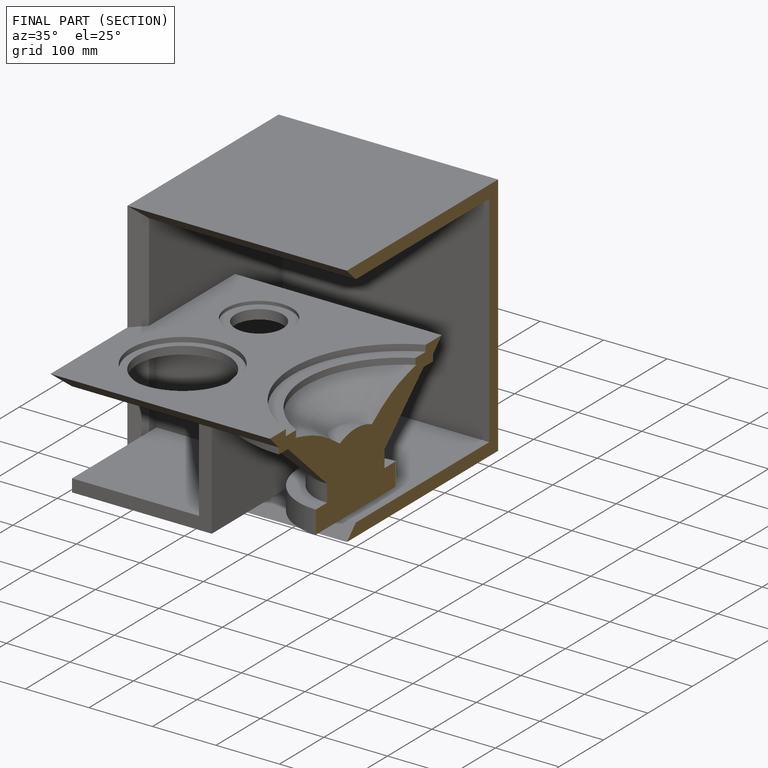
[diagram: finished part — half-section view (interior)]
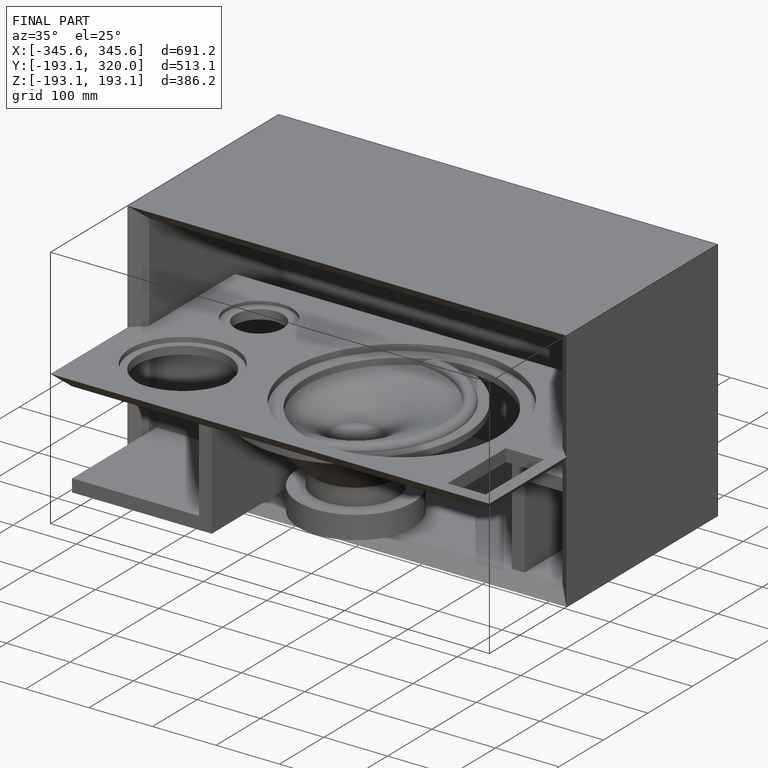
[diagram: finished part — iso view with bounding-box wireframe]
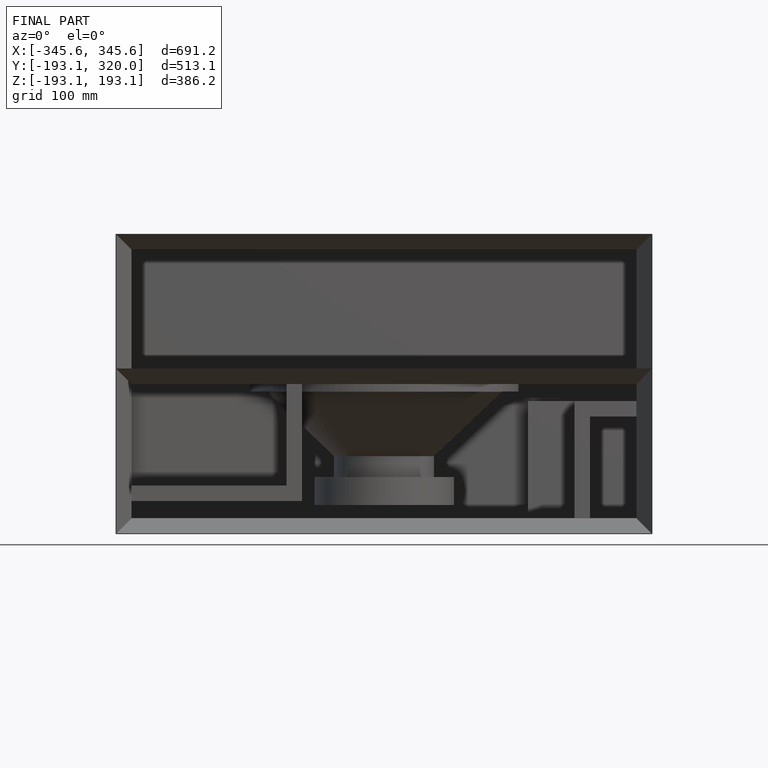
[diagram: finished part — front view with bounding-box wireframe]
